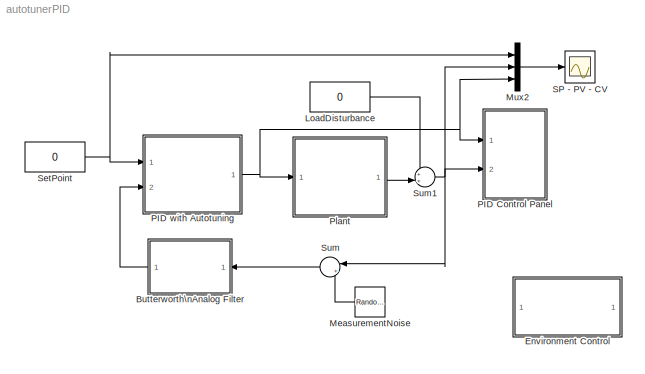
MODEL autotunerPID
KIND model
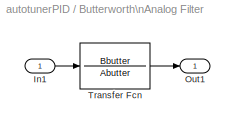
BLOCK [SubSystem] Butterworth\nAnalog Filter
  Ports = [1, 1]
  RequestExecContextInheritance = off
  SID = 1
BLOCK [Inport] Butterworth\nAnalog Filter/In1
  IconDisplay = Port number
  SID = 2
BLOCK [Outport] Butterworth\nAnalog Filter/Out1
  IconDisplay = Port number
  SID = 4
BLOCK [TransferFcn] Butterworth\nAnalog Filter/Transfer Fcn
  Denominator = Abutter
  Numerator = Bbutter
  SID = 3
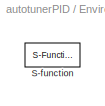
BLOCK [SubSystem] Environment Control
  Ports = []
  RequestExecContextInheritance = off
  SID = 5
  StartFcn = global MODELRUNNING;\nMODELRUNNING = 1;   \n
  StopFcn = global MODELRUNNING;\nMODELRUNNING = 0;
BLOCK [S-Function] Environment Control/S-function
  DeleteFcn = pendan([],[],[],'DeleteBlock');
  EnableBusSupport = off
  FunctionName = envgui
  Parameters = NoiseBlock,LoadDistBlock
  Ports = []
  SFcnIsStateOwnerBlock = off
  SFunctionDeploymentMode = off
  SID = 6
BLOCK [Constant] LoadDisturbance
  SID = 7
  Value = 0
BLOCK [RandomNumber] MeasurementNoise
  SID = 8
  SampleTime = 0
  Variance = 0
BLOCK [Mux] Mux2
  DisplayOption = bar
  Inputs = 3
  Ports = [3, 1]
  SID = 9
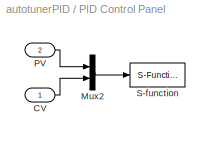
BLOCK [SubSystem] PID Control Panel
  Ports = [2]
  RequestExecContextInheritance = off
  SID = 10
BLOCK [Inport] PID Control Panel/CV
  IconDisplay = Port number
  SID = 11
BLOCK [Mux] PID Control Panel/Mux2
  DisplayOption = bar
  Inputs = 2
  Ports = [2, 1]
  SID = 13
BLOCK [Inport] PID Control Panel/PV
  IconDisplay = Port number
  Port = 2
  SID = 12
BLOCK [S-Function] PID Control Panel/S-function
  DeleteFcn = pendan([],[],[],'DeleteBlock');
  EnableBusSupport = off
  FunctionName = autogui
  Parameters = RefBlock
  Ports = [1]
  SFcnIsStateOwnerBlock = off
  SFunctionDeploymentMode = off
  SID = 14
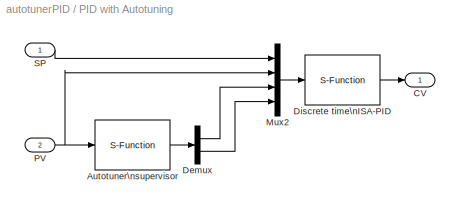
BLOCK [SubSystem] PID with Autotuning
  Ports = [2, 1]
  RequestExecContextInheritance = off
  SID = 15
BLOCK [S-Function] PID with Autotuning/Autotuner\nsupervisor
  EnableBusSupport = off
  FunctionName = pid_autotuner
  Parameters = Ts,As
  Ports = [1, 1]
  SFcnIsStateOwnerBlock = off
  SFunctionDeploymentMode = off
  SID = 18
BLOCK [Outport] PID with Autotuning/CV
  IconDisplay = Port number
  SID = 22
BLOCK [Demux] PID with Autotuning/Demux
  Outputs = 2
  Ports = [1, 2]
  SID = 19
BLOCK [S-Function] PID with Autotuning/Discrete time\nISA-PID
  EnableBusSupport = off
  FunctionName = pid_isatd
  Parameters = Ts,umin,umax,As,hystLevel
  Ports = [1, 1]
  SFcnIsStateOwnerBlock = off
  SFunctionDeploymentMode = off
  SID = 20
BLOCK [Mux] PID with Autotuning/Mux2
  DisplayOption = bar
  Ports = [4, 1]
  SID = 21
BLOCK [Inport] PID with Autotuning/PV
  IconDisplay = Port number
  Port = 2
  SID = 17
BLOCK [Inport] PID with Autotuning/SP
  IconDisplay = Port number
  SID = 16
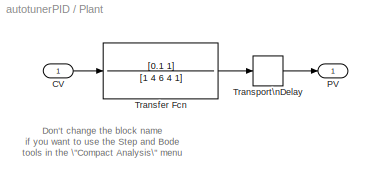
BLOCK [SubSystem] Plant
  Ports = [1, 1]
  RequestExecContextInheritance = off
  SID = 23
BLOCK [Inport] Plant/CV
  IconDisplay = Port number
  SID = 24
BLOCK [Outport] Plant/PV
  IconDisplay = Port number
  SID = 27
BLOCK [TransferFcn] Plant/Transfer Fcn
  Denominator = [1 4 6 4 1]
  Numerator = [0.1 1]
  SID = 25
BLOCK [TransportDelay] Plant/Transport\nDelay
  DelayTime = 0.75
  Ports = [1, 1]
  SID = 26
BLOCK [Scope] SP - PV - CV
  Floating = off
  NumInputPorts = 1
  Ports = [1]
  SID = 29
  ScopeSpecificationString = C++SS(StrPVP('Location','[9, 309, 637, 735]'),StrPVP('Open','on'),MxPVP('AxesTitles',54,'struct(''axes1'',''SP (yellow) -=- PV (magenta) -=- CV (cyan)'')'),StrPVP('TimeRange','100'),StrPVP('DataFormat','StructureWithTime'),StrPVP('LimitDataPoints','on'),StrPVP('Decimation','1'),StrPVP('BlockParamSampleInput','off'))
BLOCK [Constant] SetPoint
  SID = 30
  Value = 0
BLOCK [Sum] Sum
  IconShape = round
  Inputs = |++
  Ports = [2, 1]
  SID = 31
BLOCK [Sum] Sum1
  IconShape = round
  Inputs = ++|
  Ports = [2, 1]
  SID = 32
ANNOTATION Plant: Don't change the block name\nif you want to use the Step and Bode\ntools in the \"Compact Analysis\" menu
LINE Butterworth\nAnalog Filter/In1:1 -> Butterworth\nAnalog Filter/Transfer Fcn:1
LINE Butterworth\nAnalog Filter/Transfer Fcn:1 -> Butterworth\nAnalog Filter/Out1:1
LINE Butterworth\nAnalog Filter:1 -> PID with Autotuning:2
LINE LoadDisturbance:1 -> Sum1:1
LINE MeasurementNoise:1 -> Sum:2
LINE Mux2:1 -> SP - PV - CV:1
LINE PID Control Panel/CV:1 -> PID Control Panel/Mux2:2
LINE PID Control Panel/Mux2:1 -> PID Control Panel/S-function:1
LINE PID Control Panel/PV:1 -> PID Control Panel/Mux2:1
LINE PID with Autotuning/Autotuner\nsupervisor:1 -> PID with Autotuning/Demux:1
LINE PID with Autotuning/Demux:1 -> PID with Autotuning/Mux2:3
LINE PID with Autotuning/Demux:2 -> PID with Autotuning/Mux2:4
LINE PID with Autotuning/Discrete time\nISA-PID:1 -> PID with Autotuning/CV:1
LINE PID with Autotuning/Mux2:1 -> PID with Autotuning/Discrete time\nISA-PID:1
NET PID with Autotuning/PV:1 -> PID with Autotuning/Autotuner\nsupervisor:1, PID with Autotuning/Mux2:2
LINE PID with Autotuning/SP:1 -> PID with Autotuning/Mux2:1
NET PID with Autotuning:1 -> Mux2:3, PID Control Panel:1, Plant:1
LINE Plant/CV:1 -> Plant/Transfer Fcn:1
LINE Plant/Transfer Fcn:1 -> Plant/Transport\nDelay:1
LINE Plant/Transport\nDelay:1 -> Plant/PV:1
LINE Plant:1 -> Sum1:2
NET SetPoint:1 -> Mux2:1, PID with Autotuning:1
NET Sum1:1 -> Mux2:2, PID Control Panel:2, Sum:1
LINE Sum:1 -> Butterworth\nAnalog Filter:1
note: NET lines group one-source signal fan-out (src -> all destinations, sorted); 1:1 wires keep LINE
